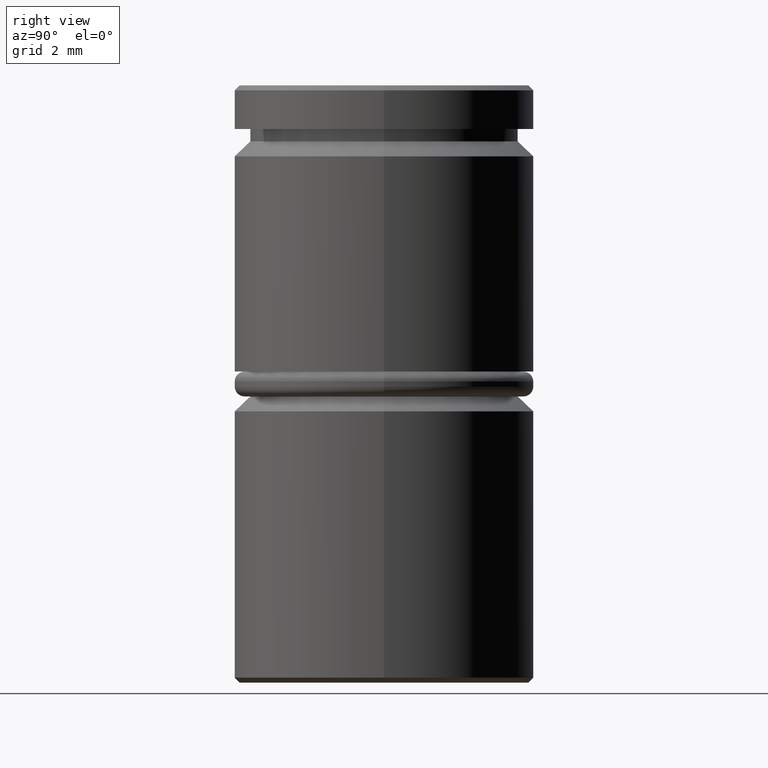
[diagram: clean part render]
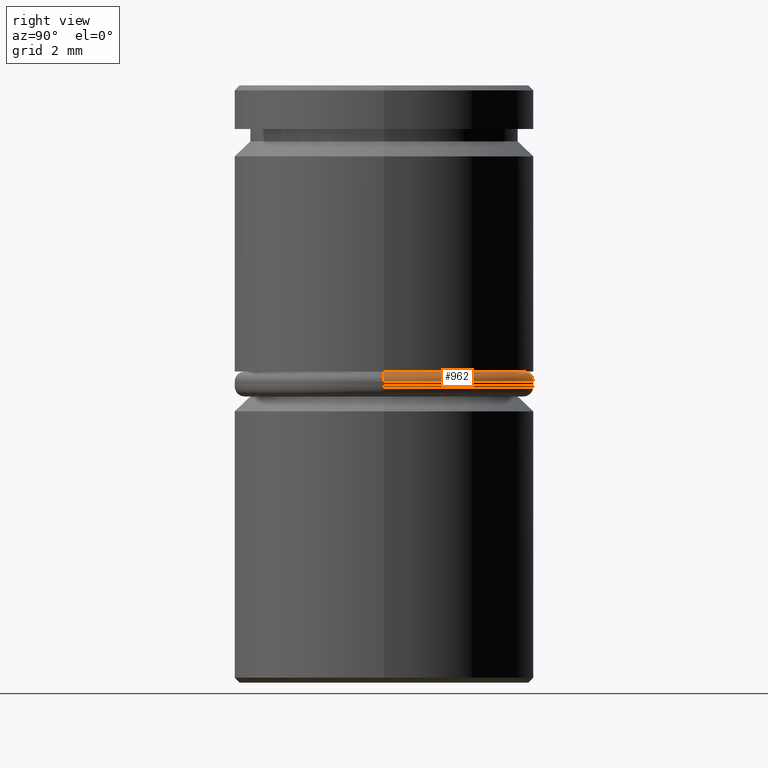
[diagram: same view with one face highlighted and labeled with its STEP entity id]
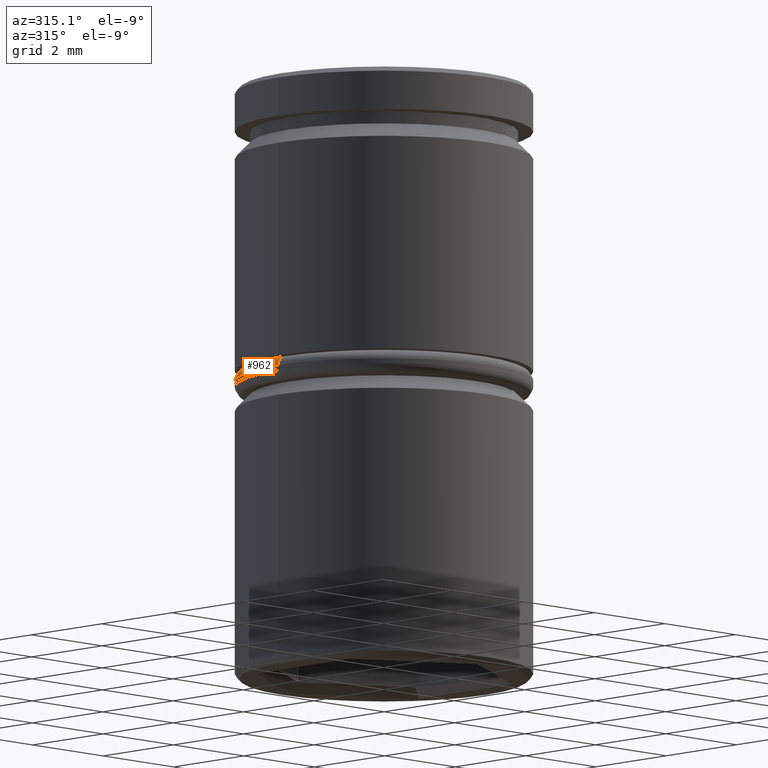
[diagram: same view with one face highlighted and labeled with its STEP entity id]
A machine part, right view. The second image highlights one B-rep face of the part: STEP entity #962.
A second angle (auxiliary view) of the same face is appended — the face is thin or edge-on in the first view.
In plain terms, the highlighted toroidal blend (fillet) surface has major radius 2.8 mm and minor (blend) radius 0.2 mm.
Its self-contained STEP definition (entity closure, byte-faithful):
#38 = DIRECTION ( 'NONE',  ( 0.000000000000000000, 0.000000000000000000, -1.000000000000000000 ) ) ;
#62 = DIRECTION ( 'NONE',  ( -1.000000000000000000, 0.000000000000000000, 0.000000000000000000 ) ) ;
#69 = EDGE_CURVE ( 'NONE', #851, #1115, #1130, .T. ) ;
#75 = DIRECTION ( 'NONE',  ( -1.000000000000000000, 0.000000000000000000, 0.000000000000000000 ) ) ;
#89 = ORIENTED_EDGE ( 'NONE', *, *, #661, .T. ) ;
#94 = CARTESIAN_POINT ( 'NONE',  ( 2.800000000000000266, 3.551475717527324325E-16, -5.750000000000000000 ) ) ;
#96 = AXIS2_PLACEMENT_3D ( 'NONE', #1146, #878, #62 ) ;
#138 = EDGE_CURVE ( 'NONE', #1037, #581, #177, .T. ) ;
#141 = AXIS2_PLACEMENT_3D ( 'NONE', #866, #888, #75 ) ;
#162 = AXIS2_PLACEMENT_3D ( 'NONE', #218, #38, #211 ) ;
#177 = CIRCLE ( 'NONE', #141, 3.000000000000000444 ) ;
#211 = DIRECTION ( 'NONE',  ( -1.000000000000000000, 0.000000000000000000, 0.000000000000000000 ) ) ;
#218 = CARTESIAN_POINT ( 'NONE',  ( 0.000000000000000000, 0.000000000000000000, -5.949999999999998401 ) ) ;
#328 = CARTESIAN_POINT ( 'NONE',  ( 3.000000000000000444, 0.000000000000000000, -5.949999999999998401 ) ) ;
#338 = AXIS2_PLACEMENT_3D ( 'NONE', #950, #399, #420 ) ;
#351 = TOROIDAL_SURFACE ( 'NONE', #162, 2.800000000000000266, 0.2000000000000000111 ) ;
#357 = CARTESIAN_POINT ( 'NONE',  ( 2.800000000000000266, 3.429011037612589276E-16, -5.949999999999998401 ) ) ;
#399 = DIRECTION ( 'NONE',  ( -0.000000000000000000, -1.000000000000000000, -0.000000000000000000 ) ) ;
#404 = ORIENTED_EDGE ( 'NONE', *, *, #1015, .F. ) ;
#420 = DIRECTION ( 'NONE',  ( 0.000000000000000000, 0.000000000000000000, -1.000000000000000000 ) ) ;
#499 = ORIENTED_EDGE ( 'NONE', *, *, #69, .F. ) ;
#519 = CARTESIAN_POINT ( 'NONE',  ( -3.000000000000000444, 3.673940397442060361E-16, -5.949999999999998401 ) ) ;
#535 = DIRECTION ( 'NONE',  ( -1.000000000000000000, -1.224646799147353207E-16, 0.000000000000000000 ) ) ;
#581 = VERTEX_POINT ( 'NONE', #328 ) ;
#582 = FACE_OUTER_BOUND ( 'NONE', #1095, .T. ) ;
#630 = AXIS2_PLACEMENT_3D ( 'NONE', #357, #1063, #535 ) ;
#661 = EDGE_CURVE ( 'NONE', #851, #581, #1087, .T. ) ;
#851 = VERTEX_POINT ( 'NONE', #94 ) ;
#866 = CARTESIAN_POINT ( 'NONE',  ( 0.000000000000000000, 0.000000000000000000, -5.949999999999998401 ) ) ;
#878 = DIRECTION ( 'NONE',  ( -0.000000000000000000, -0.000000000000000000, 1.000000000000000000 ) ) ;
#888 = DIRECTION ( 'NONE',  ( 0.000000000000000000, 0.000000000000000000, -1.000000000000000000 ) ) ;
#950 = CARTESIAN_POINT ( 'NONE',  ( -2.800000000000000266, 0.000000000000000000, -5.949999999999998401 ) ) ;
#962 = ADVANCED_FACE ( 'NONE', ( #582 ), #351, .T. ) ;
#1007 = ORIENTED_EDGE ( 'NONE', *, *, #138, .F. ) ;
#1015 = EDGE_CURVE ( 'NONE', #1115, #1037, #1165, .T. ) ;
#1037 = VERTEX_POINT ( 'NONE', #519 ) ;
#1063 = DIRECTION ( 'NONE',  ( -1.224646799147353207E-16, 1.000000000000000000, 0.000000000000000000 ) ) ;
#1087 = CIRCLE ( 'NONE', #630, 0.2000000000000000944 ) ;
#1095 = EDGE_LOOP ( 'NONE', ( #499, #89, #1007, #404 ) ) ;
#1113 = CARTESIAN_POINT ( 'NONE',  ( -2.800000000000000266, 0.000000000000000000, -5.750000000000000000 ) ) ;
#1115 = VERTEX_POINT ( 'NONE', #1113 ) ;
#1130 = CIRCLE ( 'NONE', #96, 2.800000000000000266 ) ;
#1146 = CARTESIAN_POINT ( 'NONE',  ( 0.000000000000000000, 0.000000000000000000, -5.750000000000000000 ) ) ;
#1165 = CIRCLE ( 'NONE', #338, 0.1999999999999996503 ) ;